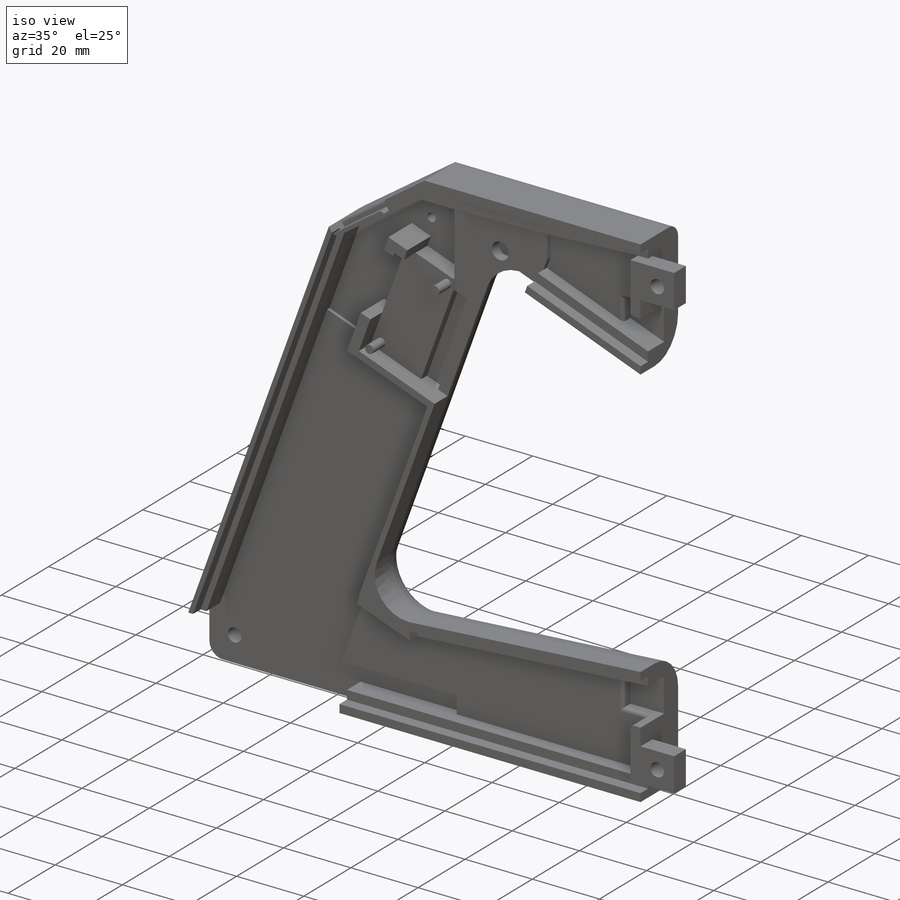
[diagram: iso view]
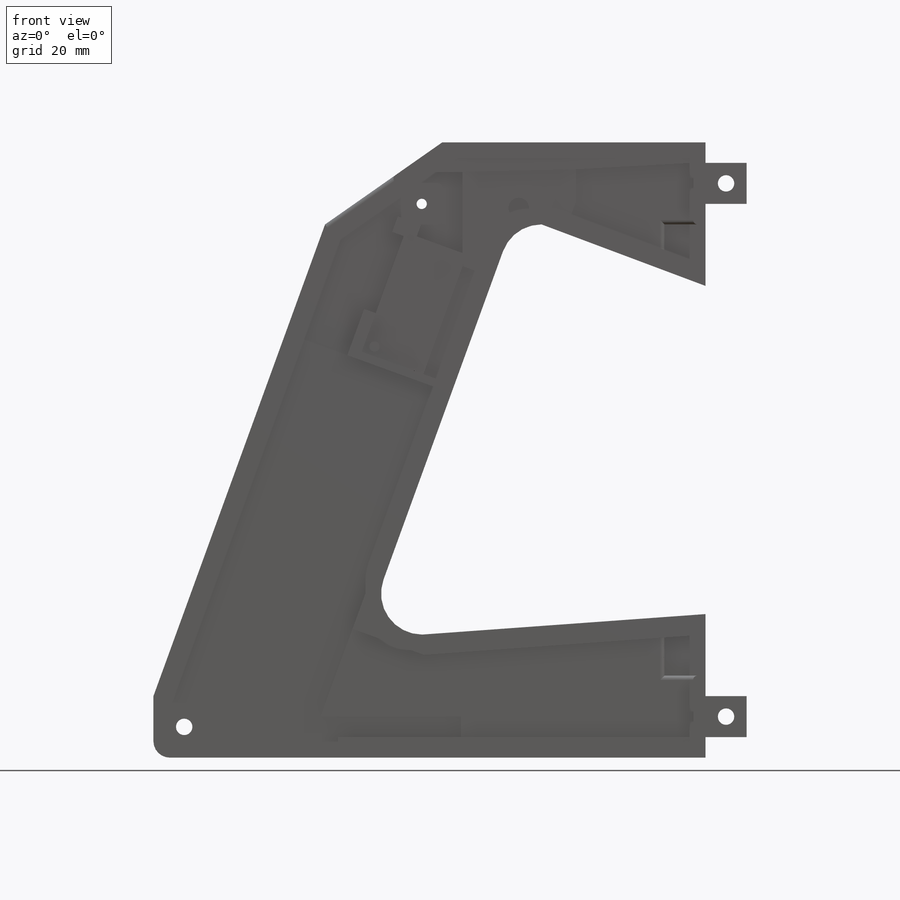
[diagram: front view]
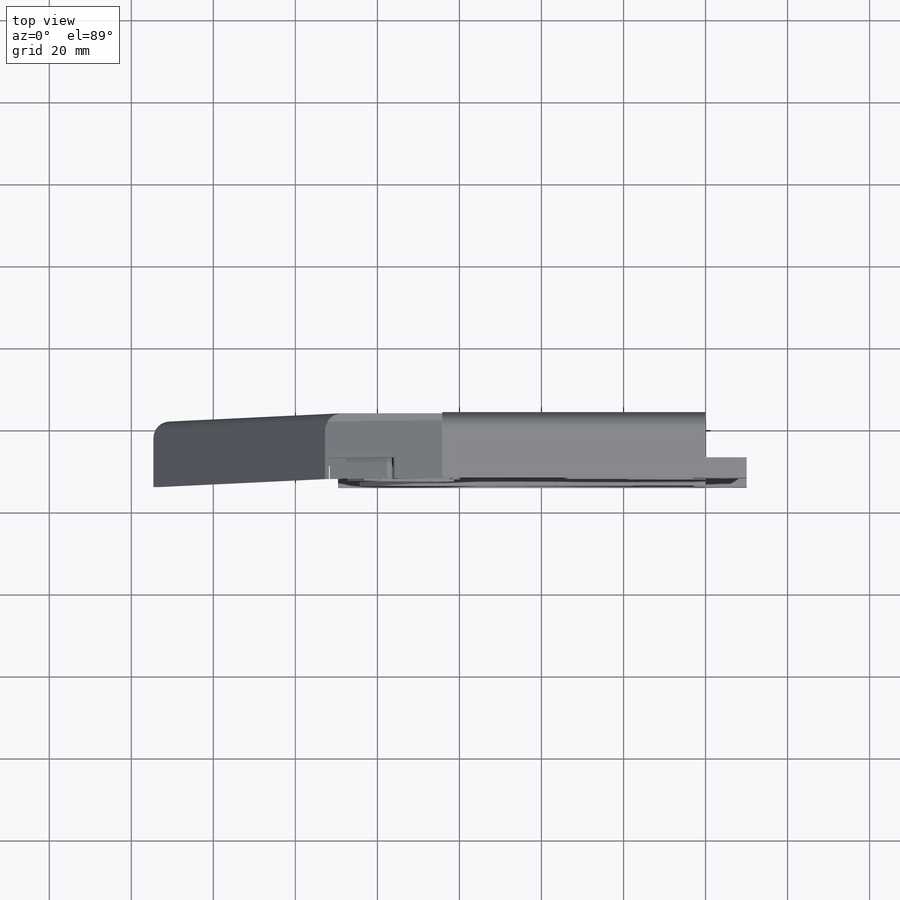
[diagram: top view]
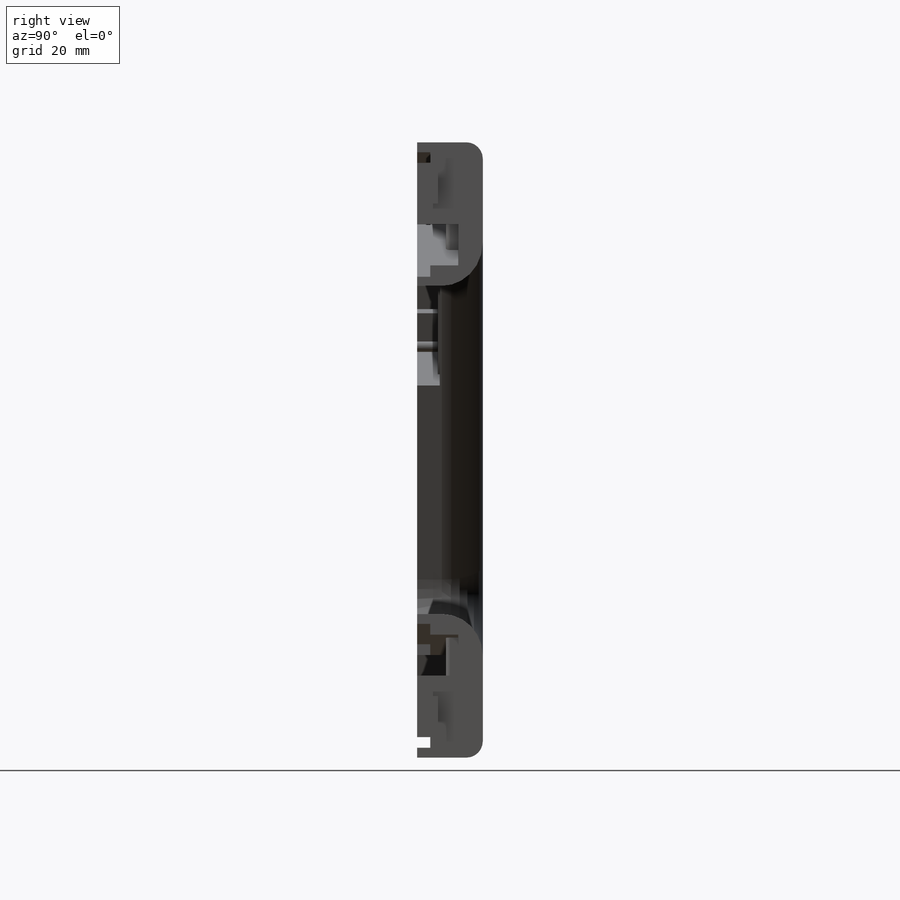
[diagram: right view]
SOLIDWORKS PART (.sldprt)
format: sldprt  version: not decoded by parser v0  size: 969,728 bytes
history: native  units: mm
features: sketch x25, cut_extrude x20, extrude x5, fillet x5, material x1, move_body x1 (+12 scaffold rows collapsed; 1 parser-record rows omitted)
feature tree (70):
  scaffold x12  (default folders/planes/origin — collapsed)
  material  "Material <nicht festgelegt>"
  parser-record x1  (decoder bookkeeping rows leaked as tree rows — omitted from the tree; the rows remain in map.json)
  sketch  "Skizze1"  dims[c1.D6=10.0mm c1.D5=10.0mm c1.D3=10.0mm c1.D4=10.0mm c2.D6=10.0mm c2.D1=40.0mm c2.D2=40.0mm c2.D3=10.0mm c2.D4=100.0mm c2.D5=10.0mm c3.D6=10.0mm c3.D5=10.0mm c4.D6=10.0mm c4.D5=~9.351746mm c4.D4=100.0mm c5.D6=10.0mm c5.D7=~74.202014mm c5.D8=35.0mm c6.D7=~74.202014mm c6.D9=114.0mm c6.D10=40.0mm c6.D1=35.0mm c6.D2=40.0mm c7.D9=100.0mm c7.D10=~9.397229mm c7.D11=~9.397229mm c8.D9=40.0mm c8.D2=40.0mm c9.D9=15.0mm c9.D7=80.0mm c9.D8=~69.107834mm c9.D12=~69.289357mm c9.D13=35.0mm c9.D14=135.0mm c9.D15=60.0mm c9.D16=30.0mm c9.D17=30.0mm c9.D18=30.0mm c10.D18=35.0deg c10.D19=~36.262866mm c10.D17=43.0mm c11.D19=120.0mm c11.D14=~126.659605mm c11.D16=~19.288921mm c12.D14=135.227mm c12.D16=35.0mm c13.D14=15.0mm c13.D15=20.0mm c13.D4=~95.691681deg c13.D5=70.0deg c13.D6=110.0deg]
  extrude  "Aufsatz-Linear austragen1"  Depth=16mm
  sketch  "Skizze2"  dims[D1=5.0mm D2=10.0mm D3=5.0mm]
  extrude  "Aufsatz-Linear austragen2"  Depth=10mm
  sketch  "Skizze3"  dims[D2=4.0mm D1=5.0mm D3=5.0mm]
  cut_extrude  "Schnitt-Linear austragen1"  [1 undecoded]
  sketch  "Skizze4"  dims[D1=5.0mm D2=10.0mm D3=5.0mm]
  extrude  "Aufsatz-Linear austragen3"  Depth=10mm
  sketch  "Skizze5"  dims[D1=4.0mm D2=5.0mm D3=5.0mm]
  cut_extrude  "Schnitt-Linear austragen2"  [1 undecoded]
  sketch  "Skizze10"  dims[c1.D1=30.0mm c1.D2=20.0mm c2.D1=20.0mm c2.D2=~28.56296mm]
  cut_extrude  "Schnitt-Linear austragen3"  Depth=2mm
  sketch  "Skizze11"  dims[c1.D1=2.5mm c1.D2=5.0mm c1.D3=5.0mm c2.D2=5.0mm c2.D3=5.0mm c3.D2=5.0mm c3.D3=5.0mm]
  cut_extrude  "Schnitt-Linear austragen4"  [1 undecoded]
  sketch  "Skizze13"  dims[D3=4.0mm D1=7.5mm D2=7.5mm]
  cut_extrude  "Schnitt-Linear austragen5"  [1 undecoded]
  sketch  "Skizze14"  dims[D1=15.0mm D2=45.0mm D3=60.0mm D4=5.0mm D5=5.0mm D6=15.0mm]
  cut_extrude  "Schnitt-Linear austragen6"  Depth=9mm
  sketch  "Skizze15"  dims[D1=3.0mm D2=3.0mm D3=85.0mm]
  cut_extrude  "Schnitt-Linear austragen7"  Depth=9mm
  sketch  "Skizze24"  dims[c1.D1=3.0mm c1.D2=~8.940568mm c2.D1=3.0mm c2.D2=45.0mm c2.D3=~8.571288mm c2.D4=~4.460362mm c3.D3=2.0mm]
  cut_extrude  "Schnitt-Linear austragen17"  Depth=5.5mm
  sketch  "Skizze25"  dims[D1=5.0mm D2=28.0mm]
  cut_extrude  "Schnitt-Linear austragen18"  Depth=7.5mm
  sketch  "Skizze27"  dims[D1=8.0mm D2=8.0mm D3=~27.60642mm D4=23.0mm]
  cut_extrude  "Schnitt-Linear austragen19"  Depth=5.5mm
  sketch  "Skizze29"  dims[D1=16.0mm D2=31.0mm D3=31.0mm]
  cut_extrude  "Schnitt-Linear austragen20"  Depth=5mm
  sketch  "Skizze30"  dims[D1=2.5mm D2=2.25mm D3=2.5mm]
  extrude  "Aufsatz-Linear austragen9"  Depth=5mm
  sketch  "Skizze31"  dims[D1=2.5mm D2=2.25mm D3=2.25mm]
  extrude  "Aufsatz-Linear austragen10"  Depth=5mm
  sketch  "Skizze16"  dims[c1.D1=5.0mm c1.D2=10.0mm c1.D3=~40.964402mm c1.D4=~9.813503mm c1.D5=~17.513497mm c1.D6=3.0mm c1.D7=5.0mm c1.D8=~28.755371mm c2.D3=~41.280337mm c2.D4=~27.031216mm c2.D5=~5.091794mm c2.D8=~6.093188mm c2.D9=~40.079222mm c3.D3=~28.672547mm]
  cut_extrude  "Schnitt-Linear austragen9"  Depth=7mm
  sketch  "Skizze32"  dims[c1.D1=3.0mm c1.D2=3.0mm c1.D3=1.0mm c1.D4=3.0mm c1.D5=3.0mm c1.D6=10.0mm c1.D7=3.0mm c1.D8=16.0mm c2.D7=13.0mm c2.D8=12.0mm c2.D9=~27.196377mm c2.D10=3.0mm c3.D8=12.0mm]
  cut_extrude  "Schnitt-Linear austragen21"  Depth=10mm
  sketch  "Skizze17"  dims[c1.D1=5.0mm c1.D2=10.0mm c1.D3=10.0mm c2.D2=~4.986965mm c2.D3=~18.524702mm c2.D4=3.0mm]
  cut_extrude  "Schnitt-Linear austragen10"  Depth=7mm
  sketch  "Skizze18"  dims[D1=10.0mm]
  cut_extrude  "Schnitt-Linear austragen11"  Depth=3mm
  sketch  "Skizze19"  dims[D1=10.0mm]
  cut_extrude  "Schnitt-Linear austragen12"  Depth=3mm
  sketch  "Skizze20"  dims[D1=5.0mm D2=2.0mm D3=15.0mm]
  cut_extrude  "Schnitt-Linear austragen13"  Depth=10mm
  sketch  "Skizze23"  dims[D1=~17.868936mm]
  cut_extrude  "Schnitt-Linear austragen16"  Depth=2mm
  fillet  "Verrundung4"  Radius=1mm
  fillet  "Verrundung5"  Radius=1mm
  fillet  "Verrundung1"  Radius=10mm
  fillet  "Verrundung2"  Radius=4mm
  fillet  "Verrundung3"  Radius=4mm
  move_body  "Body-Move/Copy1"
  sketch  "Sketch1"  dims[c1.D1=~5.234417mm c2.D1=0.0deg c2.D2=2.6mm c2.D3=2.6mm c2.D4=1.75mm c2.D5=~1.147153mm c3.D5=0.0deg c3.D6=1.75mm c3.D7=2.6mm c3.D8=2.6mm]
  cut_extrude  "Cut-Extrude15"  Depth=3.2mm
  sketch  "Skizze33"  dims[D1=5.0mm D2=3.0mm D3=18.0mm]
  cut_extrude  "Schnitt-Linear austragen22"  Depth=3mm
decode coverage: 51 of 56 modeling features carry decoded parameters
note: ~ marks probable driven/reference dimensions
note: 4 parameter values undecoded
summary: no parameter record found for 4 features
note: suppression state not decoded; provenance and decode notes live in map.json
